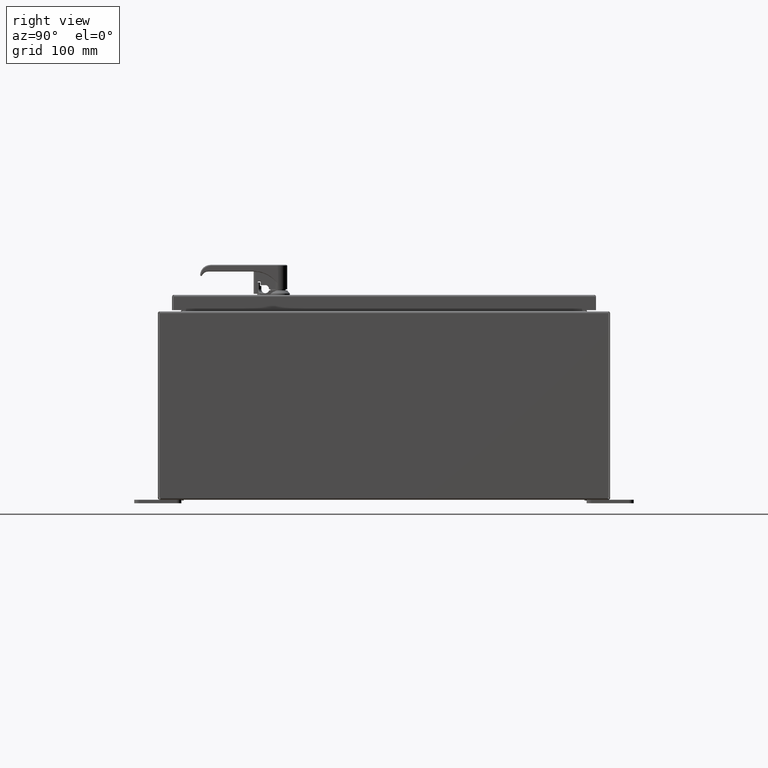
[diagram: clean part render]
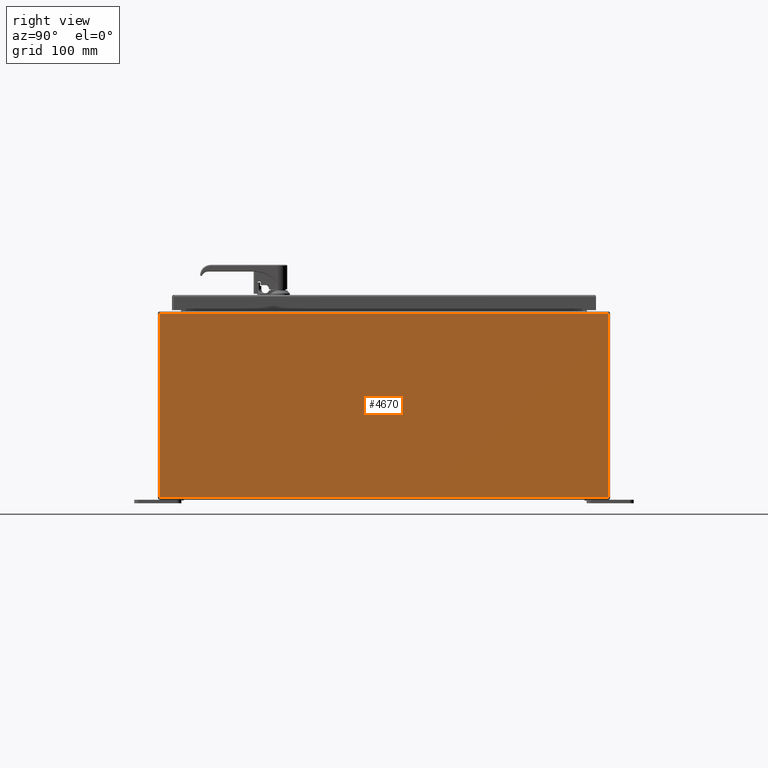
[diagram: same view with one face highlighted and labeled with its STEP entity id]
A machine part, right view. The second image highlights one B-rep face of the part: STEP entity #4670.
In plain terms, the highlighted planar face has unit normal (-1, 0, 0).
Its self-contained STEP definition (entity closure, byte-faithful):
#4496=CARTESIAN_POINT('',(25.380000000000599,23.921000000000006,9.894749999999963));
#4497=VERTEX_POINT('',#4496);
#4505=CARTESIAN_POINT('',(25.379999999999995,23.921000000000006,0.114286009042401));
#4506=VERTEX_POINT('',#4505);
#4507=CARTESIAN_POINT('',(25.37999999999974,23.92100000000001,9.894749999999961));
#4508=DIRECTION('',(0.0,0.0,-1.0));
#4509=VECTOR('',#4508,9.780463990957559);
#4510=LINE('',#4507,#4509);
#4511=EDGE_CURVE('',#4497,#4506,#4510,.T.);
#4576=CARTESIAN_POINT('',(25.379999999999995,0.078999999999997,0.114286009042407));
#4577=VERTEX_POINT('',#4576);
#4584=CARTESIAN_POINT('',(25.380000000000621,0.078999999999995,9.894749999999979));
#4585=VERTEX_POINT('',#4584);
#4586=CARTESIAN_POINT('',(25.38000000000001,0.078999999999995,0.114286009042407));
#4587=DIRECTION('',(0.0,0.0,1.0));
#4588=VECTOR('',#4587,9.780463990957573);
#4589=LINE('',#4586,#4588);
#4590=EDGE_CURVE('',#4577,#4585,#4589,.T.);
#4626=CARTESIAN_POINT('',(25.380000000000599,23.921000000000006,9.894749999999963));
#4627=DIRECTION('',(0.0,-1.0,0.0));
#4628=VECTOR('',#4627,23.842000000000013);
#4629=LINE('',#4626,#4628);
#4630=EDGE_CURVE('',#4497,#4585,#4629,.T.);
#4636=CARTESIAN_POINT('',(25.380000000000301,11.999999999999998,4.965508743193597));
#4637=DIRECTION('',(-1.0,0.0,0.0));
#4638=DIRECTION('',(0.0,0.0,1.0));
#4639=AXIS2_PLACEMENT_3D('',#4636,#4637,#4638);
#4640=PLANE('',#4639);
#4641=ORIENTED_EDGE('',*,*,#4630,.T.);
#4642=ORIENTED_EDGE('',*,*,#4590,.F.);
#4643=CARTESIAN_POINT('',(25.379999999999999,0.098896389270555,0.105249999999984));
#4644=VERTEX_POINT('',#4643);
#4645=CARTESIAN_POINT('',(25.379999999999999,0.060357483369662,0.046814114347742));
#4646=DIRECTION('',(-1.0,0.0,0.0));
#4647=DIRECTION('',(0.0,0.0,1.0));
#4648=AXIS2_PLACEMENT_3D('',#4645,#4646,#4647);
#4649=CIRCLE('',#4648,0.07);
#4650=EDGE_CURVE('',#4577,#4644,#4649,.T.);
#4651=ORIENTED_EDGE('',*,*,#4650,.T.);
#4652=CARTESIAN_POINT('',(25.379999999999995,23.901103610729461,0.10524999999999));
#4653=VERTEX_POINT('',#4652);
#4654=CARTESIAN_POINT('',(25.38000000000001,0.098896389270553,0.105249999999984));
#4655=DIRECTION('',(0.0,1.0,0.0));
#4656=VECTOR('',#4655,23.802207221458904);
#4657=LINE('',#4654,#4656);
#4658=EDGE_CURVE('',#4644,#4653,#4657,.T.);
#4659=ORIENTED_EDGE('',*,*,#4658,.T.);
#4660=CARTESIAN_POINT('',(25.379999999999995,23.939642516630339,0.046814114347736));
#4661=DIRECTION('',(-1.0,0.0,0.0));
#4662=DIRECTION('',(0.0,0.0,1.0));
#4663=AXIS2_PLACEMENT_3D('',#4660,#4661,#4662);
#4664=CIRCLE('',#4663,0.07);
#4665=EDGE_CURVE('',#4653,#4506,#4664,.T.);
#4666=ORIENTED_EDGE('',*,*,#4665,.T.);
#4667=ORIENTED_EDGE('',*,*,#4511,.F.);
#4668=EDGE_LOOP('',(#4641,#4642,#4651,#4659,#4666,#4667));
#4669=FACE_OUTER_BOUND('',#4668,.T.);
#4670=ADVANCED_FACE('',(#4669),#4640,.F.);